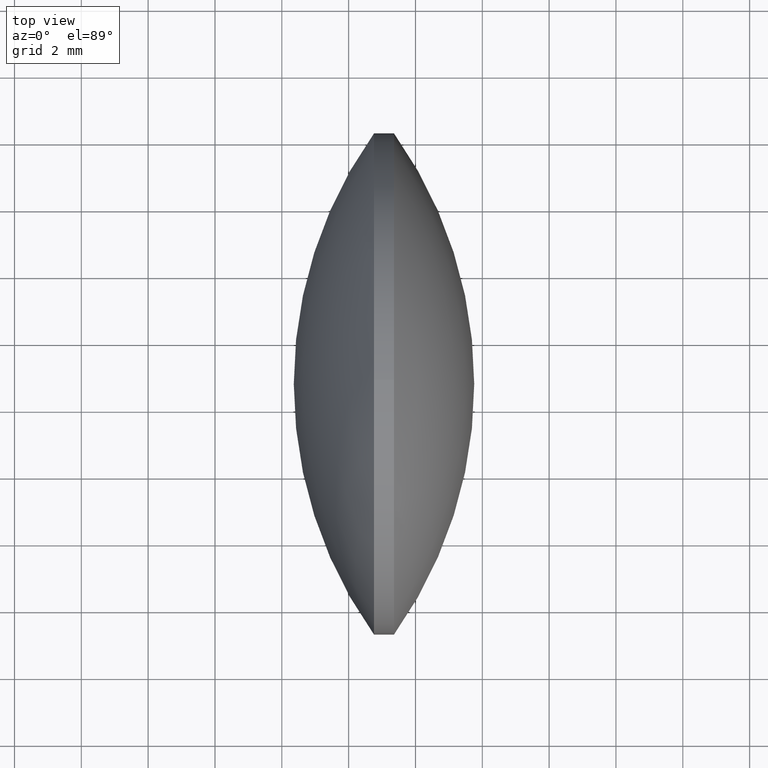
[diagram: clean part render]
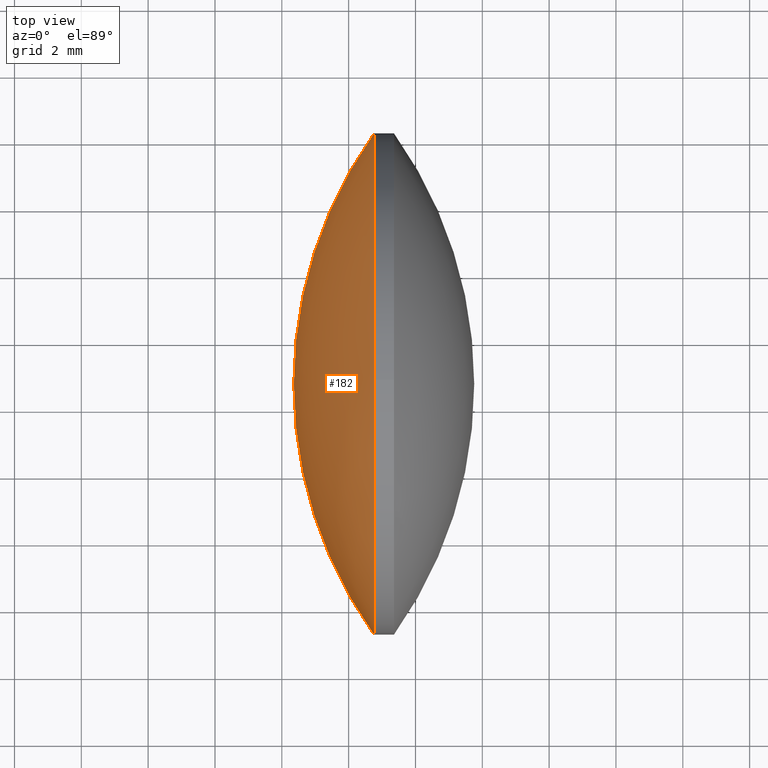
[diagram: same view with one face highlighted and labeled with its STEP entity id]
A machine part, top view. The second image highlights one B-rep face of the part: STEP entity #182.
In plain terms, the highlighted spherical surface has radius 12.9187 mm.
Its self-contained STEP definition (entity closure, byte-faithful):
#11 = CARTESIAN_POINT ( 'NONE',  ( 61.27673844960327900, 28.71030296644745400, 0.0000000000000000000 ) ) ;
#12 = DIRECTION ( 'NONE',  ( -0.0000000000000000000, 0.0000000000000000000, 1.000000000000000000 ) ) ;
#13 = CARTESIAN_POINT ( 'NONE',  ( 61.27673844960327900, 28.71030296644745400, 0.0000000000000000000 ) ) ;
#15 = VERTEX_POINT ( 'NONE', #33 ) ;
#33 = CARTESIAN_POINT ( 'NONE',  ( 50.75798844960341000, 28.71030296644745400, 7.499999999999927200 ) ) ;
#34 = DIRECTION ( 'NONE',  ( -0.0000000000000000000, 0.0000000000000000000, -1.000000000000000000 ) ) ;
#37 = AXIS2_PLACEMENT_3D ( 'NONE', #206, #12, #299 ) ;
#48 = VERTEX_POINT ( 'NONE', #91 ) ;
#52 = ORIENTED_EDGE ( 'NONE', *, *, #274, .F. ) ;
#63 = CIRCLE ( 'NONE', #94, 12.91874999999985700 ) ;
#70 = DIRECTION ( 'NONE',  ( 0.0000000000000000000, 0.0000000000000000000, 1.000000000000000000 ) ) ;
#74 = AXIS2_PLACEMENT_3D ( 'NONE', #13, #34, #249 ) ;
#85 = CARTESIAN_POINT ( 'NONE',  ( 48.35798844960342500, 28.71030296644745400, 0.0000000000000000000 ) ) ;
#91 = CARTESIAN_POINT ( 'NONE',  ( 50.75798844960341000, 36.21030296644737900, 0.0000000000000000000 ) ) ;
#94 = AXIS2_PLACEMENT_3D ( 'NONE', #11, #195, #225 ) ;
#106 = DIRECTION ( 'NONE',  ( -1.000000000000000000, -0.0000000000000000000, -0.0000000000000000000 ) ) ;
#113 = AXIS2_PLACEMENT_3D ( 'NONE', #234, #205, #70 ) ;
#115 = EDGE_LOOP ( 'NONE', ( #52, #247, #138, #209 ) ) ;
#138 = ORIENTED_EDGE ( 'NONE', *, *, #290, .T. ) ;
#145 = FACE_OUTER_BOUND ( 'NONE', #115, .T. ) ;
#179 = VERTEX_POINT ( 'NONE', #85 ) ;
#182 = ADVANCED_FACE ( 'NONE', ( #145 ), #319, .T. ) ;
#195 = DIRECTION ( 'NONE',  ( 0.0000000000000000000, 1.224646799147353200E-016, -1.000000000000000000 ) ) ;
#205 = DIRECTION ( 'NONE',  ( -1.000000000000000000, -0.0000000000000000000, -0.0000000000000000000 ) ) ;
#206 = CARTESIAN_POINT ( 'NONE',  ( 61.27673844960327900, 28.71030296644745400, 0.0000000000000000000 ) ) ;
#207 = CIRCLE ( 'NONE', #113, 7.499999999999927200 ) ;
#208 = CARTESIAN_POINT ( 'NONE',  ( 50.75798844960341000, 28.71030296644745400, 0.0000000000000000000 ) ) ;
#209 = ORIENTED_EDGE ( 'NONE', *, *, #223, .T. ) ;
#223 = EDGE_CURVE ( 'NONE', #48, #179, #337, .T. ) ;
#225 = DIRECTION ( 'NONE',  ( 0.0000000000000000000, 1.000000000000000000, 1.224646799147353200E-016 ) ) ;
#234 = CARTESIAN_POINT ( 'NONE',  ( 50.75798844960341000, 28.71030296644745400, 0.0000000000000000000 ) ) ;
#235 = DIRECTION ( 'NONE',  ( 0.0000000000000000000, 0.0000000000000000000, 1.000000000000000000 ) ) ;
#247 = ORIENTED_EDGE ( 'NONE', *, *, #322, .T. ) ;
#249 = DIRECTION ( 'NONE',  ( 0.0000000000000000000, 1.000000000000000000, 0.0000000000000000000 ) ) ;
#272 = CIRCLE ( 'NONE', #275, 7.499999999999927200 ) ;
#274 = EDGE_CURVE ( 'NONE', #288, #179, #63, .T. ) ;
#275 = AXIS2_PLACEMENT_3D ( 'NONE', #208, #106, #235 ) ;
#287 = CARTESIAN_POINT ( 'NONE',  ( 50.75798844960341000, 21.21030296644752500, -9.184850993605061200E-016 ) ) ;
#288 = VERTEX_POINT ( 'NONE', #287 ) ;
#290 = EDGE_CURVE ( 'NONE', #15, #48, #207, .T. ) ;
#299 = DIRECTION ( 'NONE',  ( 1.000000000000000000, 0.0000000000000000000, 0.0000000000000000000 ) ) ;
#319 = SPHERICAL_SURFACE ( 'NONE', #74, 12.91874999999985700 ) ;
#322 = EDGE_CURVE ( 'NONE', #288, #15, #272, .T. ) ;
#337 = CIRCLE ( 'NONE', #37, 12.91874999999985400 ) ;